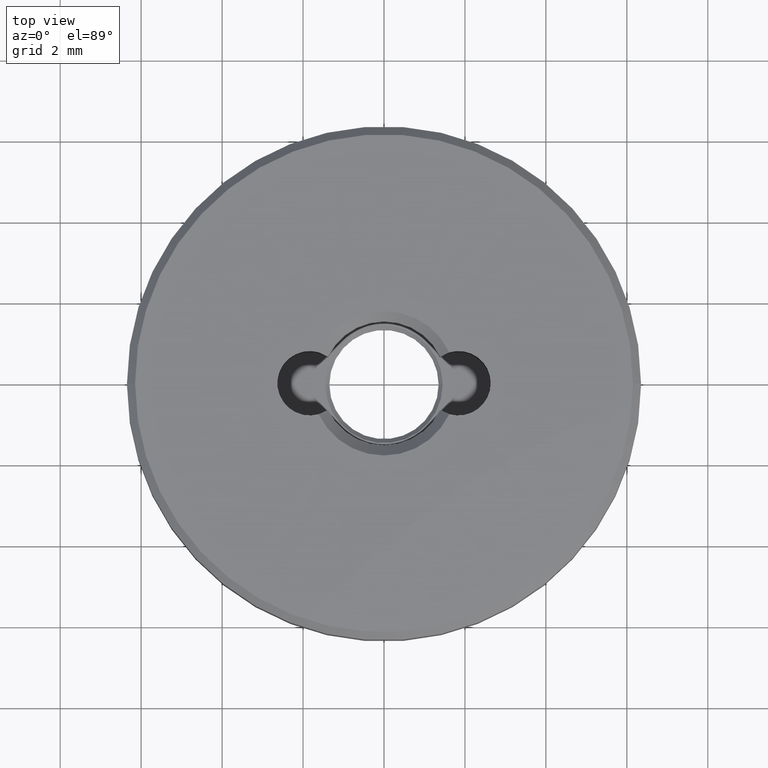
[diagram: clean part render]
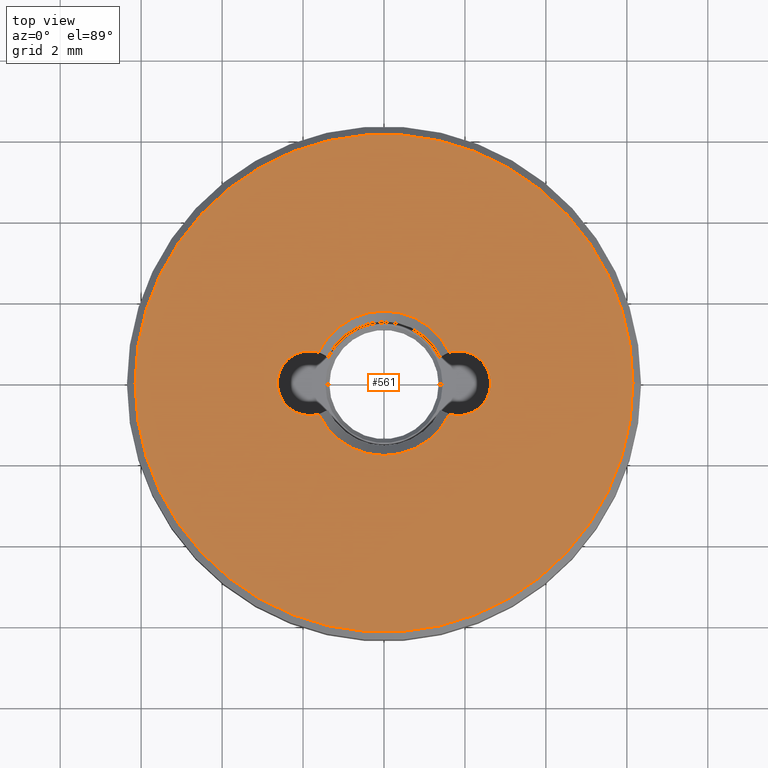
[diagram: same view with one face highlighted and labeled with its STEP entity id]
A machine part, top view. The second image highlights one B-rep face of the part: STEP entity #561.
In plain terms, the highlighted planar face has unit normal (0, 0, 1).
Its self-contained STEP definition (entity closure, byte-faithful):
#16 = DIRECTION ( 'NONE',  ( -0.000000000000000000, -0.000000000000000000, -1.000000000000000000 ) ) ;
#30 = CARTESIAN_POINT ( 'NONE',  ( 0.000000000000000000, 0.000000000000000000, 2.200000000000000178 ) ) ;
#31 = CARTESIAN_POINT ( 'NONE',  ( -1.834999999999999742, -2.247226876435391980E-16, 2.200000000000000178 ) ) ;
#36 = CARTESIAN_POINT ( 'NONE',  ( 1.611294277929156360, -0.7680857698934172584, 2.200000000000000178 ) ) ;
#38 = ORIENTED_EDGE ( 'NONE', *, *, #505, .T. ) ;
#41 = VERTEX_POINT ( 'NONE', #191 ) ;
#68 = EDGE_CURVE ( 'NONE', #41, #222, #520, .T. ) ;
#69 = VERTEX_POINT ( 'NONE', #136 ) ;
#71 = AXIS2_PLACEMENT_3D ( 'NONE', #594, #16, #179 ) ;
#81 = AXIS2_PLACEMENT_3D ( 'NONE', #285, #288, #390 ) ;
#84 = DIRECTION ( 'NONE',  ( 1.000000000000000000, 0.000000000000000000, 0.000000000000000000 ) ) ;
#86 = CARTESIAN_POINT ( 'NONE',  ( 0.000000000000000000, 0.000000000000000000, 2.200000000000000178 ) ) ;
#92 = VERTEX_POINT ( 'NONE', #199 ) ;
#107 = EDGE_CURVE ( 'NONE', #92, #360, #613, .T. ) ;
#114 = AXIS2_PLACEMENT_3D ( 'NONE', #468, #522, #214 ) ;
#128 = AXIS2_PLACEMENT_3D ( 'NONE', #86, #143, #516 ) ;
#133 = CARTESIAN_POINT ( 'NONE',  ( 0.000000000000000000, 0.000000000000000000, 2.200000000000000178 ) ) ;
#136 = CARTESIAN_POINT ( 'NONE',  ( 1.611294277929156360, 0.7680857698934177025, 2.200000000000000178 ) ) ;
#143 = DIRECTION ( 'NONE',  ( 0.000000000000000000, 0.000000000000000000, 1.000000000000000000 ) ) ;
#163 = ORIENTED_EDGE ( 'NONE', *, *, #190, .T. ) ;
#166 = CARTESIAN_POINT ( 'NONE',  ( -1.611294277929156360, -0.7680857698934177025, 2.200000000000000178 ) ) ;
#179 = DIRECTION ( 'NONE',  ( 1.000000000000000000, 0.000000000000000000, 0.000000000000000000 ) ) ;
#190 = EDGE_CURVE ( 'NONE', #705, #222, #323, .T. ) ;
#191 = CARTESIAN_POINT ( 'NONE',  ( -1.611294277929156360, 0.7680857698934172584, 2.200000000000000178 ) ) ;
#199 = CARTESIAN_POINT ( 'NONE',  ( -6.149999999999999467, 0.000000000000000000, 2.200000000000000178 ) ) ;
#208 = EDGE_LOOP ( 'NONE', ( #566, #38 ) ) ;
#214 = DIRECTION ( 'NONE',  ( 1.000000000000000000, 0.000000000000000000, 0.000000000000000000 ) ) ;
#222 = VERTEX_POINT ( 'NONE', #166 ) ;
#239 = DIRECTION ( 'NONE',  ( 0.000000000000000000, 0.000000000000000000, 1.000000000000000000 ) ) ;
#285 = CARTESIAN_POINT ( 'NONE',  ( 1.834999999999999742, 2.247226876435391980E-16, 2.200000000000000178 ) ) ;
#288 = DIRECTION ( 'NONE',  ( 0.000000000000000000, 0.000000000000000000, 1.000000000000000000 ) ) ;
#303 = CIRCLE ( 'NONE', #81, 0.8000000000000008216 ) ;
#311 = AXIS2_PLACEMENT_3D ( 'NONE', #31, #239, #84 ) ;
#313 = DIRECTION ( 'NONE',  ( 0.000000000000000000, 0.000000000000000000, 1.000000000000000000 ) ) ;
#319 = ORIENTED_EDGE ( 'NONE', *, *, #361, .T. ) ;
#323 = CIRCLE ( 'NONE', #114, 1.785000000000001918 ) ;
#360 = VERTEX_POINT ( 'NONE', #442 ) ;
#361 = EDGE_CURVE ( 'NONE', #41, #69, #601, .T. ) ;
#362 = CARTESIAN_POINT ( 'NONE',  ( 2.635000000000001119, 2.247226876435391980E-16, 2.200000000000000178 ) ) ;
#384 = ORIENTED_EDGE ( 'NONE', *, *, #684, .F. ) ;
#390 = DIRECTION ( 'NONE',  ( -1.000000000000000000, 0.000000000000000000, 0.000000000000000000 ) ) ;
#400 = CIRCLE ( 'NONE', #523, 0.8000000000000008216 ) ;
#403 = EDGE_CURVE ( 'NONE', #705, #634, #303, .T. ) ;
#415 = DIRECTION ( 'NONE',  ( 1.000000000000000000, 0.000000000000000000, 0.000000000000000000 ) ) ;
#420 = ORIENTED_EDGE ( 'NONE', *, *, #403, .F. ) ;
#421 = AXIS2_PLACEMENT_3D ( 'NONE', #30, #503, #570 ) ;
#442 = CARTESIAN_POINT ( 'NONE',  ( 6.149999999999999467, 7.654042494670954648E-16, 2.200000000000000178 ) ) ;
#450 = FACE_OUTER_BOUND ( 'NONE', #208, .T. ) ;
#468 = CARTESIAN_POINT ( 'NONE',  ( 0.000000000000000000, 0.000000000000000000, 2.200000000000000178 ) ) ;
#469 = EDGE_LOOP ( 'NONE', ( #420, #163, #502, #319, #384 ) ) ;
#480 = DIRECTION ( 'NONE',  ( 0.000000000000000000, 0.000000000000000000, 1.000000000000000000 ) ) ;
#502 = ORIENTED_EDGE ( 'NONE', *, *, #68, .F. ) ;
#503 = DIRECTION ( 'NONE',  ( 0.000000000000000000, 0.000000000000000000, 1.000000000000000000 ) ) ;
#505 = EDGE_CURVE ( 'NONE', #360, #92, #637, .T. ) ;
#516 = DIRECTION ( 'NONE',  ( 1.000000000000000000, 0.000000000000000000, -0.000000000000000000 ) ) ;
#520 = CIRCLE ( 'NONE', #311, 0.8000000000000008216 ) ;
#522 = DIRECTION ( 'NONE',  ( -0.000000000000000000, -0.000000000000000000, -1.000000000000000000 ) ) ;
#523 = AXIS2_PLACEMENT_3D ( 'NONE', #689, #313, #524 ) ;
#524 = DIRECTION ( 'NONE',  ( -1.000000000000000000, 0.000000000000000000, 0.000000000000000000 ) ) ;
#561 = ADVANCED_FACE ( 'NONE', ( #623, #450 ), #615, .T. ) ;
#566 = ORIENTED_EDGE ( 'NONE', *, *, #107, .T. ) ;
#570 = DIRECTION ( 'NONE',  ( 1.000000000000000000, 0.000000000000000000, 0.000000000000000000 ) ) ;
#575 = AXIS2_PLACEMENT_3D ( 'NONE', #133, #480, #415 ) ;
#594 = CARTESIAN_POINT ( 'NONE',  ( 0.000000000000000000, 0.000000000000000000, 2.200000000000000178 ) ) ;
#601 = CIRCLE ( 'NONE', #71, 1.785000000000001918 ) ;
#613 = CIRCLE ( 'NONE', #575, 6.149999999999999467 ) ;
#615 = PLANE ( 'NONE',  #128 ) ;
#623 = FACE_BOUND ( 'NONE', #469, .T. ) ;
#634 = VERTEX_POINT ( 'NONE', #362 ) ;
#637 = CIRCLE ( 'NONE', #421, 6.149999999999999467 ) ;
#684 = EDGE_CURVE ( 'NONE', #634, #69, #400, .T. ) ;
#689 = CARTESIAN_POINT ( 'NONE',  ( 1.834999999999999742, 2.247226876435391980E-16, 2.200000000000000178 ) ) ;
#705 = VERTEX_POINT ( 'NONE', #36 ) ;